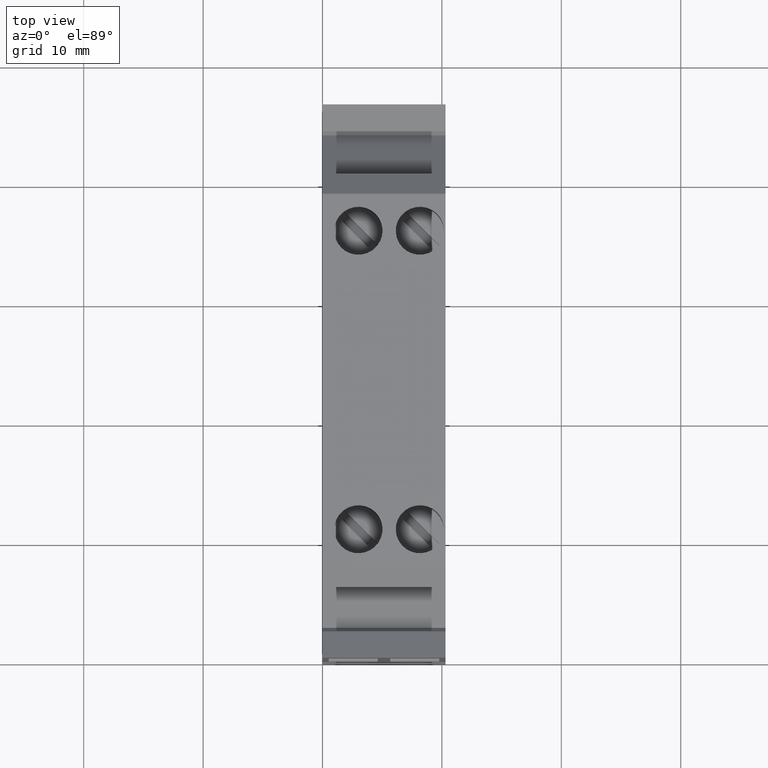
[diagram: clean part render]
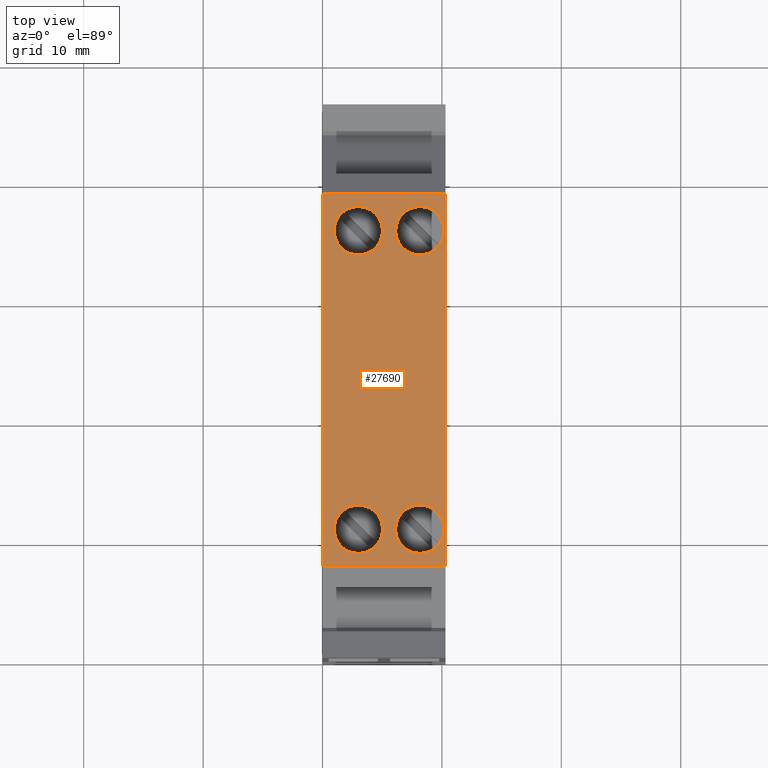
[diagram: same view with one face highlighted and labeled with its STEP entity id]
A machine part, top view. The second image highlights one B-rep face of the part: STEP entity #27690.
In plain terms, the highlighted planar face has unit normal (0, 0, -1).
Its self-contained STEP definition (entity closure, byte-faithful):
#840=CARTESIAN_POINT('',(-37.2770985338076,42.9295237515583,10.3));
#850=VERTEX_POINT('',#840);
#880=CARTESIAN_POINT('',(-56.8069065338077,42.9295237515583,10.3));
#890=DIRECTION('',(1.,0.,0.));
#900=VECTOR('',#890,1.);
#910=LINE('',#880,#900);
#920=CARTESIAN_POINT('',(-6.07709853380768,42.9295237515583,10.3));
#930=VERTEX_POINT('',#920);
#940=EDGE_CURVE('',#850,#930,#910,.T.);
#10520=CARTESIAN_POINT('',(-6.07709853380768,42.9295237515583,
-7.105427357601E-15));
#10530=VERTEX_POINT('',#10520);
#10560=CARTESIAN_POINT('',(-56.8069065338077,42.9295237515583,
3.5527136788005E-15));
#10570=DIRECTION('',(1.,0.,0.));
#10580=VECTOR('',#10570,1.);
#10590=LINE('',#10560,#10580);
#10600=CARTESIAN_POINT('',(-37.2770985338076,42.9295237515583,
-7.105427357601E-15));
#10610=VERTEX_POINT('',#10600);
#10620=EDGE_CURVE('',#10610,#10530,#10590,.T.);
#26610=CARTESIAN_POINT('',(-37.2770985338076,42.9295237515583,5.15));
#26620=DIRECTION('',(0.,0.,1.));
#26630=VECTOR('',#26620,1.);
#26640=LINE('',#26610,#26630);
#26650=EDGE_CURVE('',#10610,#850,#26640,.T.);
#26770=CARTESIAN_POINT('',(-36.932770920518,42.9295237515583,5.15));
#26780=DIRECTION('',(-0.,-1.,-0.));
#26790=DIRECTION('',(-1.,0.,0.));
#26800=AXIS2_PLACEMENT_3D('',#26770,#26780,#26790);
#26810=PLANE('',#26800);
#26820=CARTESIAN_POINT('',(-34.1770985338077,42.9295237515583,
3.00000000000001));
#26830=DIRECTION('',(-1.23259516440783E-32,1.,-2.46519032881566E-32));
#26840=DIRECTION('',(0.707106781186548,-2.46519032881566E-32,
0.707106781186547));
#26850=AXIS2_PLACEMENT_3D('',#26820,#26830,#26840);
#26860=CIRCLE('',#26850,2.025);
#26870=CARTESIAN_POINT('',(-36.1621992869182,42.9295237515583,
2.60000000000004));
#26880=VERTEX_POINT('',#26870);
#26890=CARTESIAN_POINT('',(-32.7452073019049,42.9295237515583,
4.43189123190277));
#26900=VERTEX_POINT('',#26890);
#26910=EDGE_CURVE('',#26880,#26900,#26860,.T.);
#26920=ORIENTED_EDGE('',*,*,#26910,.F.);
#26930=CARTESIAN_POINT('',(-35.6089897657105,42.9295237515583,
1.56810876809725));
#26940=VERTEX_POINT('',#26930);
#26950=EDGE_CURVE('',#26900,#26940,#26860,.T.);
#26960=ORIENTED_EDGE('',*,*,#26950,.F.);
#26970=EDGE_CURVE('',#26940,#26880,#26860,.T.);
#26980=ORIENTED_EDGE('',*,*,#26970,.F.);
#26990=EDGE_LOOP('',(#26980,#26960,#26920));
#27000=FACE_BOUND('',#26990,.T.);
#27010=CARTESIAN_POINT('',(-9.17709853380769,42.9295237515583,
3.00000000000001));
#27020=DIRECTION('',(-1.23259516440783E-32,1.,-2.46519032881566E-32));
#27030=DIRECTION('',(0.707106781186548,-2.46519032881566E-32,
0.707106781186547));
#27040=AXIS2_PLACEMENT_3D('',#27010,#27020,#27030);
#27050=CIRCLE('',#27040,2.025);
#27060=CARTESIAN_POINT('',(-11.1806523298767,42.9295237515583,
3.293933982822));
#27070=VERTEX_POINT('',#27060);
#27080=CARTESIAN_POINT('',(-7.74520730190493,42.9295237515583,
4.43189123190276));
#27090=VERTEX_POINT('',#27080);
#27100=EDGE_CURVE('',#27070,#27090,#27050,.T.);
#27110=ORIENTED_EDGE('',*,*,#27100,.F.);
#27120=CARTESIAN_POINT('',(-10.6089897657104,42.9295237515583,
1.56810876809725));
#27130=VERTEX_POINT('',#27120);
#27140=EDGE_CURVE('',#27090,#27130,#27050,.T.);
#27150=ORIENTED_EDGE('',*,*,#27140,.F.);
#27160=EDGE_CURVE('',#27130,#27070,#27050,.T.);
#27170=ORIENTED_EDGE('',*,*,#27160,.F.);
#27180=EDGE_LOOP('',(#27170,#27150,#27110));
#27190=FACE_BOUND('',#27180,.T.);
#27200=ORIENTED_EDGE('',*,*,#940,.T.);
#27210=ORIENTED_EDGE('',*,*,#26650,.T.);
#27220=ORIENTED_EDGE('',*,*,#10620,.F.);
#27230=CARTESIAN_POINT('',(-6.07709853380767,42.9295237515583,5.15));
#27240=DIRECTION('',(0.,0.,1.));
#27250=VECTOR('',#27240,1.);
#27260=LINE('',#27230,#27250);
#27270=EDGE_CURVE('',#10530,#930,#27260,.T.);
#27280=ORIENTED_EDGE('',*,*,#27270,.F.);
#27290=EDGE_LOOP('',(#27280,#27220,#27210,#27200));
#27300=FACE_OUTER_BOUND('',#27290,.T.);
#27310=CARTESIAN_POINT('',(-34.1770985338077,42.9295237515583,
8.15000000000001));
#27320=DIRECTION('',(-1.23259516440783E-32,1.,-2.46519032881566E-32));
#27330=DIRECTION('',(0.707106781186548,-2.46519032881566E-32,
0.707106781186547));
#27340=AXIS2_PLACEMENT_3D('',#27310,#27320,#27330);
#27350=CIRCLE('',#27340,2.025);
#27360=CARTESIAN_POINT('',(-36.1621992869182,42.9295237515583,
7.75000000000004));
#27370=VERTEX_POINT('',#27360);
#27380=CARTESIAN_POINT('',(-32.7452073019049,42.9295237515583,
9.58189123190277));
#27390=VERTEX_POINT('',#27380);
#27400=EDGE_CURVE('',#27370,#27390,#27350,.T.);
#27410=ORIENTED_EDGE('',*,*,#27400,.F.);
#27420=CARTESIAN_POINT('',(-35.6089897657105,42.9295237515583,
6.71810876809725));
#27430=VERTEX_POINT('',#27420);
#27440=EDGE_CURVE('',#27390,#27430,#27350,.T.);
#27450=ORIENTED_EDGE('',*,*,#27440,.F.);
#27460=EDGE_CURVE('',#27430,#27370,#27350,.T.);
#27470=ORIENTED_EDGE('',*,*,#27460,.F.);
#27480=EDGE_LOOP('',(#27470,#27450,#27410));
#27490=FACE_BOUND('',#27480,.T.);
#27500=CARTESIAN_POINT('',(-9.17709853380769,42.9295237515583,
8.15000000000001));
#27510=DIRECTION('',(-1.23259516440783E-32,1.,-2.46519032881566E-32));
#27520=DIRECTION('',(0.707106781186548,-2.46519032881566E-32,
0.707106781186547));
#27530=AXIS2_PLACEMENT_3D('',#27500,#27510,#27520);
#27540=CIRCLE('',#27530,2.025);
#27550=CARTESIAN_POINT('',(-11.1806523298767,42.9295237515583,
8.443933982822));
#27560=VERTEX_POINT('',#27550);
#27570=CARTESIAN_POINT('',(-7.74520730190493,42.9295237515583,
9.58189123190276));
#27580=VERTEX_POINT('',#27570);
#27590=EDGE_CURVE('',#27560,#27580,#27540,.T.);
#27600=ORIENTED_EDGE('',*,*,#27590,.F.);
#27610=CARTESIAN_POINT('',(-10.6089897657104,42.9295237515583,
6.71810876809725));
#27620=VERTEX_POINT('',#27610);
#27630=EDGE_CURVE('',#27580,#27620,#27540,.T.);
#27640=ORIENTED_EDGE('',*,*,#27630,.F.);
#27650=EDGE_CURVE('',#27620,#27560,#27540,.T.);
#27660=ORIENTED_EDGE('',*,*,#27650,.F.);
#27670=EDGE_LOOP('',(#27660,#27640,#27600));
#27680=FACE_BOUND('',#27670,.T.);
#27690=ADVANCED_FACE('',(#27000,#27190,#27300,#27490,#27680),#26810,.F.)
;